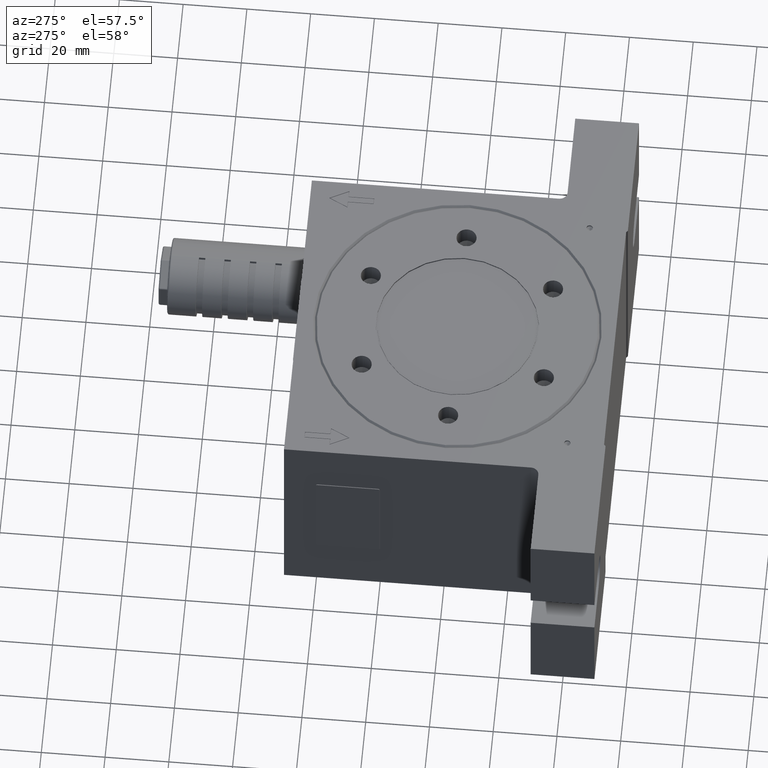
[diagram: clean part render]
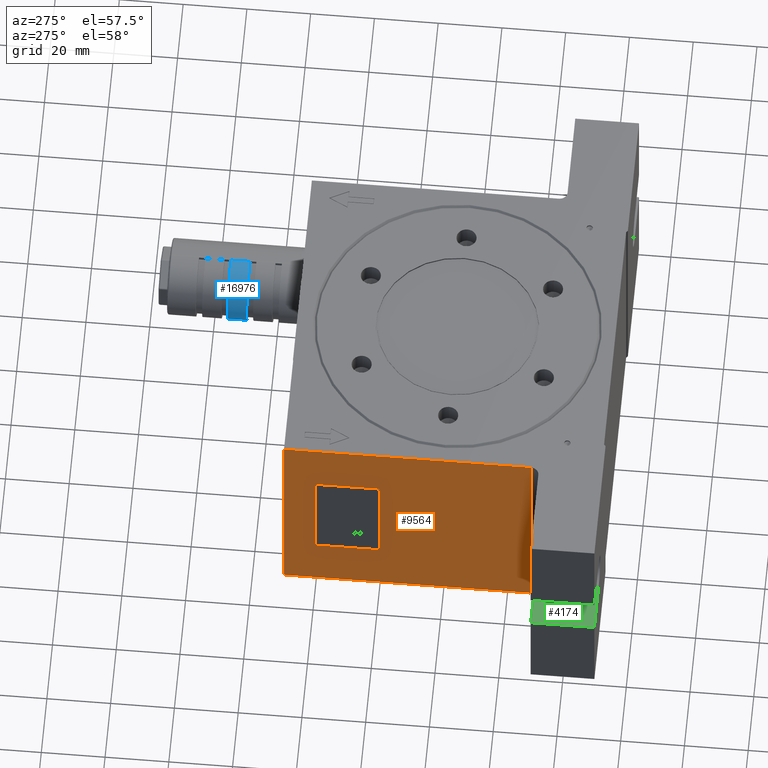
[diagram: same view with three faces highlighted in distinct colors, each labeled with its STEP entity id]
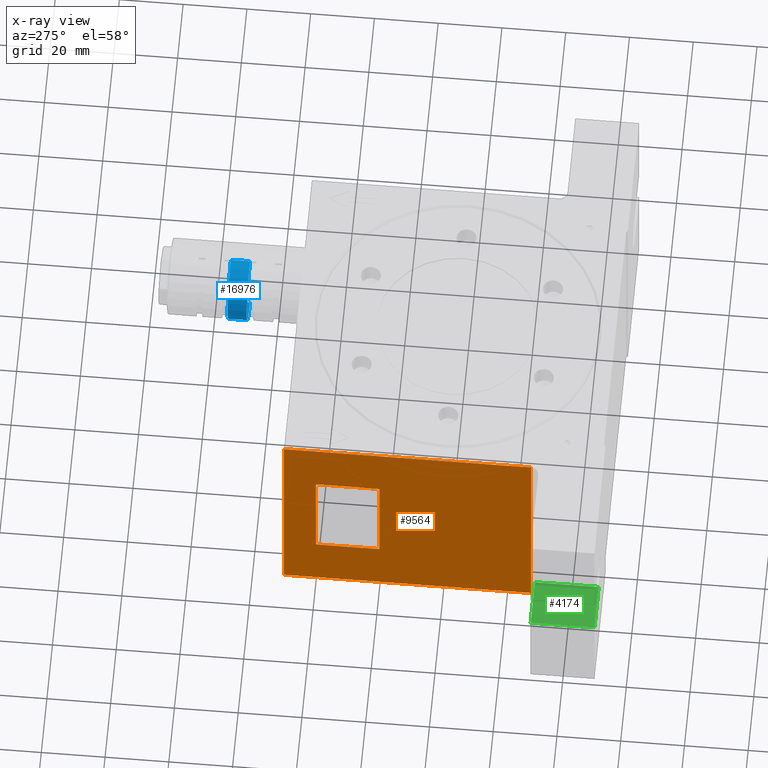
[diagram: x-ray of the same camera — body ghosted, the three highlighted faces saturated]
A machine part, auxiliary view with three faces highlighted in distinct colors.
The next image is the same camera in x-ray (body ghosted, the three faces saturated) — at least one of them is partly hidden behind the body in this view.
Their STEP definitions:

[orange] entity #9564 — the highlighted planar face has unit normal (1, 0, 0).
#187 = EDGE_CURVE ( 'NONE', #17499, #21171, #15452, .T. ) ;
#822 = ORIENTED_EDGE ( 'NONE', *, *, #22055, .T. ) ;
#852 = AXIS2_PLACEMENT_3D ( 'NONE', #12243, #8265, #15798 ) ;
#1632 = DIRECTION ( 'NONE',  ( 1.000000000000000000, 0.0000000000000000000, 0.0000000000000000000 ) ) ;
#1690 = EDGE_CURVE ( 'NONE', #20763, #24495, #15044, .T. ) ;
#2110 = CARTESIAN_POINT ( 'NONE',  ( -50.00000000000000000, 39.50000000000000000, 17.50000000000000000 ) ) ;
#2241 = VERTEX_POINT ( 'NONE', #14936 ) ;
#2710 = CARTESIAN_POINT ( 'NONE',  ( -50.00000000000000000, -27.50000000000000000, -36.50000000000000000 ) ) ;
#2783 = CIRCLE ( 'NONE', #7077, 0.5000000000000004400 ) ;
#2844 = CARTESIAN_POINT ( 'NONE',  ( -50.00000000000000000, 20.50000000000000000, 17.00000000000000000 ) ) ;
#3218 = AXIS2_PLACEMENT_3D ( 'NONE', #2844, #20069, #16385 ) ;
#3422 = LINE ( 'NONE', #13223, #17935 ) ;
#3959 = EDGE_CURVE ( 'NONE', #21384, #6188, #2783, .T. ) ;
#4138 = ORIENTED_EDGE ( 'NONE', *, *, #13981, .T. ) ;
#4201 = CIRCLE ( 'NONE', #20741, 0.5000000000000004400 ) ;
#4593 = VERTEX_POINT ( 'NONE', #11995 ) ;
#4663 = ORIENTED_EDGE ( 'NONE', *, *, #20098, .F. ) ;
#5164 = EDGE_CURVE ( 'NONE', #2241, #6188, #15127, .T. ) ;
#6021 = VERTEX_POINT ( 'NONE', #9073 ) ;
#6075 = VECTOR ( 'NONE', #17476, 1000.000000000000000 ) ;
#6151 = LINE ( 'NONE', #7075, #15287 ) ;
#6188 = VERTEX_POINT ( 'NONE', #18843 ) ;
#6537 = EDGE_CURVE ( 'NONE', #10835, #4593, #13467, .T. ) ;
#6594 = CARTESIAN_POINT ( 'NONE',  ( -50.00000000000000000, 39.50000000000000000, -17.00000000000000000 ) ) ;
#6926 = LINE ( 'NONE', #12762, #13266 ) ;
#7075 = CARTESIAN_POINT ( 'NONE',  ( -50.00000000000000000, 40.00000000000000000, 17.50000000000000000 ) ) ;
#7077 = AXIS2_PLACEMENT_3D ( 'NONE', #21386, #13665, #19367 ) ;
#7311 = LINE ( 'NONE', #19485, #6075 ) ;
#7895 = EDGE_LOOP ( 'NONE', ( #11871, #822, #12035, #4663 ) ) ;
#8265 = DIRECTION ( 'NONE',  ( 1.000000000000000000, 0.0000000000000000000, 0.0000000000000000000 ) ) ;
#8553 = DIRECTION ( 'NONE',  ( 0.0000000000000000000, 0.0000000000000000000, -1.000000000000000000 ) ) ;
#8641 = ORIENTED_EDGE ( 'NONE', *, *, #187, .T. ) ;
#9073 = CARTESIAN_POINT ( 'NONE',  ( -50.00000000000000000, 50.00000000000000000, 36.50000000000000000 ) ) ;
#9083 = EDGE_CURVE ( 'NONE', #2241, #17499, #4201, .T. ) ;
#9191 = DIRECTION ( 'NONE',  ( 0.0000000000000000000, -1.000000000000000000, 0.0000000000000000000 ) ) ;
#9356 = VECTOR ( 'NONE', #14165, 1000.000000000000000 ) ;
#9449 = DIRECTION ( 'NONE',  ( 0.0000000000000000000, 0.0000000000000000000, 1.000000000000000000 ) ) ;
#9564 = ADVANCED_FACE ( 'NONE', ( #22038, #10306 ), #14098, .F. ) ;
#9629 = CARTESIAN_POINT ( 'NONE',  ( -50.00000000000000000, 39.50000000000000000, 17.00000000000000000 ) ) ;
#9747 = CIRCLE ( 'NONE', #15082, 0.5000000000000004400 ) ;
#9993 = VECTOR ( 'NONE', #9449, 1000.000000000000000 ) ;
#10306 = FACE_OUTER_BOUND ( 'NONE', #7895, .T. ) ;
#10422 = VERTEX_POINT ( 'NONE', #2110 ) ;
#10835 = VERTEX_POINT ( 'NONE', #13452 ) ;
#11083 = DIRECTION ( 'NONE',  ( 0.0000000000000000000, 1.000000000000000000, 0.0000000000000000000 ) ) ;
#11364 = CARTESIAN_POINT ( 'NONE',  ( -50.00000000000000000, 40.00000000000000000, 17.00000000000000000 ) ) ;
#11751 = ORIENTED_EDGE ( 'NONE', *, *, #9083, .T. ) ;
#11871 = ORIENTED_EDGE ( 'NONE', *, *, #1690, .F. ) ;
#11995 = CARTESIAN_POINT ( 'NONE',  ( -50.00000000000000000, 20.00000000000000000, 17.00000000000000000 ) ) ;
#12035 = ORIENTED_EDGE ( 'NONE', *, *, #23351, .T. ) ;
#12243 = CARTESIAN_POINT ( 'NONE',  ( -50.00000000000000000, 50.00000000000000000, -36.50000000000000000 ) ) ;
#12762 = CARTESIAN_POINT ( 'NONE',  ( -50.00000000000000000, 50.00000000000000000, -36.50000000000000000 ) ) ;
#12884 = VECTOR ( 'NONE', #11083, 1000.000000000000000 ) ;
#13223 = CARTESIAN_POINT ( 'NONE',  ( -50.00000000000000000, 50.00000000000000000, 36.50000000000000000 ) ) ;
#13266 = VECTOR ( 'NONE', #18488, 1000.000000000000000 ) ;
#13452 = CARTESIAN_POINT ( 'NONE',  ( -50.00000000000000000, 20.50000000000000000, 17.50000000000000000 ) ) ;
#13467 = CIRCLE ( 'NONE', #3218, 0.5000000000000004400 ) ;
#13566 = CARTESIAN_POINT ( 'NONE',  ( -50.00000000000000000, -27.50000000000000000, 36.50000000000000000 ) ) ;
#13665 = DIRECTION ( 'NONE',  ( 1.000000000000000000, 0.0000000000000000000, 0.0000000000000000000 ) ) ;
#13981 = EDGE_CURVE ( 'NONE', #21171, #10422, #9747, .T. ) ;
#14098 = PLANE ( 'NONE',  #852 ) ;
#14165 = DIRECTION ( 'NONE',  ( 0.0000000000000000000, -1.000000000000000000, 0.0000000000000000000 ) ) ;
#14857 = EDGE_CURVE ( 'NONE', #21384, #4593, #22647, .T. ) ;
#14936 = CARTESIAN_POINT ( 'NONE',  ( -50.00000000000000000, 39.50000000000000000, -17.50000000000000000 ) ) ;
#15044 = LINE ( 'NONE', #22089, #12884 ) ;
#15082 = AXIS2_PLACEMENT_3D ( 'NONE', #9629, #1632, #19129 ) ;
#15127 = LINE ( 'NONE', #15455, #9356 ) ;
#15287 = VECTOR ( 'NONE', #9191, 1000.000000000000000 ) ;
#15295 = DIRECTION ( 'NONE',  ( 0.0000000000000000000, 1.000000000000000000, 0.0000000000000000000 ) ) ;
#15452 = LINE ( 'NONE', #24949, #9993 ) ;
#15455 = CARTESIAN_POINT ( 'NONE',  ( -50.00000000000000000, 40.00000000000000000, -17.50000000000000000 ) ) ;
#15598 = ORIENTED_EDGE ( 'NONE', *, *, #14857, .F. ) ;
#15798 = DIRECTION ( 'NONE',  ( 0.0000000000000000000, 0.0000000000000000000, -1.000000000000000000 ) ) ;
#16385 = DIRECTION ( 'NONE',  ( 0.0000000000000000000, 0.0000000000000000000, -1.000000000000000000 ) ) ;
#17476 = DIRECTION ( 'NONE',  ( 0.0000000000000000000, 0.0000000000000000000, 1.000000000000000000 ) ) ;
#17499 = VERTEX_POINT ( 'NONE', #18541 ) ;
#17935 = VECTOR ( 'NONE', #15295, 1000.000000000000000 ) ;
#18334 = DIRECTION ( 'NONE',  ( 1.000000000000000000, 0.0000000000000000000, 0.0000000000000000000 ) ) ;
#18488 = DIRECTION ( 'NONE',  ( 0.0000000000000000000, 0.0000000000000000000, 1.000000000000000000 ) ) ;
#18541 = CARTESIAN_POINT ( 'NONE',  ( -50.00000000000000000, 40.00000000000000000, -17.00000000000000000 ) ) ;
#18783 = CARTESIAN_POINT ( 'NONE',  ( -50.00000000000000000, 20.00000000000000000, -17.00000000000000000 ) ) ;
#18843 = CARTESIAN_POINT ( 'NONE',  ( -50.00000000000000000, 20.50000000000000000, -17.50000000000000000 ) ) ;
#19029 = VECTOR ( 'NONE', #22668, 1000.000000000000000 ) ;
#19066 = ORIENTED_EDGE ( 'NONE', *, *, #5164, .F. ) ;
#19101 = ORIENTED_EDGE ( 'NONE', *, *, #6537, .T. ) ;
#19129 = DIRECTION ( 'NONE',  ( 0.0000000000000000000, 0.0000000000000000000, -1.000000000000000000 ) ) ;
#19367 = DIRECTION ( 'NONE',  ( 0.0000000000000000000, 0.0000000000000000000, -1.000000000000000000 ) ) ;
#19485 = CARTESIAN_POINT ( 'NONE',  ( -50.00000000000000000, -27.50000000000000000, 36.50000000000000000 ) ) ;
#19529 = EDGE_LOOP ( 'NONE', ( #15598, #22674, #19066, #11751, #8641, #4138, #24040, #19101 ) ) ;
#20069 = DIRECTION ( 'NONE',  ( 1.000000000000000000, 0.0000000000000000000, 0.0000000000000000000 ) ) ;
#20098 = EDGE_CURVE ( 'NONE', #24495, #6021, #6926, .T. ) ;
#20468 = CARTESIAN_POINT ( 'NONE',  ( -50.00000000000000000, 20.00000000000000000, -17.50000000000000000 ) ) ;
#20741 = AXIS2_PLACEMENT_3D ( 'NONE', #6594, #18334, #8553 ) ;
#20763 = VERTEX_POINT ( 'NONE', #2710 ) ;
#21171 = VERTEX_POINT ( 'NONE', #11364 ) ;
#21285 = CARTESIAN_POINT ( 'NONE',  ( -50.00000000000000000, 50.00000000000000000, -36.50000000000000000 ) ) ;
#21384 = VERTEX_POINT ( 'NONE', #18783 ) ;
#21386 = CARTESIAN_POINT ( 'NONE',  ( -50.00000000000000000, 20.50000000000000000, -17.00000000000000000 ) ) ;
#22038 = FACE_BOUND ( 'NONE', #19529, .T. ) ;
#22055 = EDGE_CURVE ( 'NONE', #20763, #23329, #7311, .T. ) ;
#22089 = CARTESIAN_POINT ( 'NONE',  ( -50.00000000000000000, 50.00000000000000000, -36.50000000000000000 ) ) ;
#22647 = LINE ( 'NONE', #20468, #19029 ) ;
#22668 = DIRECTION ( 'NONE',  ( 0.0000000000000000000, 0.0000000000000000000, 1.000000000000000000 ) ) ;
#22674 = ORIENTED_EDGE ( 'NONE', *, *, #3959, .T. ) ;
#23208 = EDGE_CURVE ( 'NONE', #10422, #10835, #6151, .T. ) ;
#23329 = VERTEX_POINT ( 'NONE', #13566 ) ;
#23351 = EDGE_CURVE ( 'NONE', #23329, #6021, #3422, .T. ) ;
#24040 = ORIENTED_EDGE ( 'NONE', *, *, #23208, .T. ) ;
#24495 = VERTEX_POINT ( 'NONE', #21285 ) ;
#24949 = CARTESIAN_POINT ( 'NONE',  ( -50.00000000000000000, 40.00000000000000000, -17.50000000000000000 ) ) ;

[blue] entity #16976 — the highlighted cylindrical surface (partial cylindrical patch) has radius 12 mm, axis along (0, -1, 0).
#1021 = CYLINDRICAL_SURFACE ( 'NONE', #17493, 12.00000000000000000 ) ;
#1467 = DIRECTION ( 'NONE',  ( 0.0000000000000000000, 0.0000000000000000000, -1.000000000000000000 ) ) ;
#1532 = ORIENTED_EDGE ( 'NONE', *, *, #8338, .F. ) ;
#1974 = ORIENTED_EDGE ( 'NONE', *, *, #17089, .F. ) ;
#3421 = CARTESIAN_POINT ( 'NONE',  ( 34.00000000000000000, 93.00000000000000000, 12.00000000000000000 ) ) ;
#4490 = VECTOR ( 'NONE', #9706, 1000.000000000000000 ) ;
#4915 = CIRCLE ( 'NONE', #11398, 12.00000000000000000 ) ;
#5124 = EDGE_CURVE ( 'NONE', #24989, #6602, #22640, .T. ) ;
#5636 = CARTESIAN_POINT ( 'NONE',  ( 34.00000000000000000, 68.00000000000000000, 0.0000000000000000000 ) ) ;
#6344 = CARTESIAN_POINT ( 'NONE',  ( 34.00000000000000000, 74.00000000000000000, 12.00000000000000000 ) ) ;
#6602 = VERTEX_POINT ( 'NONE', #14809 ) ;
#7315 = CARTESIAN_POINT ( 'NONE',  ( 34.00000000000000000, 74.00000000000000000, 0.0000000000000000000 ) ) ;
#7406 = DIRECTION ( 'NONE',  ( 0.0000000000000000000, 1.000000000000000000, 0.0000000000000000000 ) ) ;
#8338 = EDGE_CURVE ( 'NONE', #24989, #21085, #15483, .T. ) ;
#9706 = DIRECTION ( 'NONE',  ( 0.0000000000000000000, -1.000000000000000000, 0.0000000000000000000 ) ) ;
#9919 = ORIENTED_EDGE ( 'NONE', *, *, #5124, .T. ) ;
#9946 = ORIENTED_EDGE ( 'NONE', *, *, #17213, .T. ) ;
#10335 = DIRECTION ( 'NONE',  ( 0.0000000000000000000, -1.000000000000000000, 0.0000000000000000000 ) ) ;
#11398 = AXIS2_PLACEMENT_3D ( 'NONE', #5636, #24969, #19140 ) ;
#13118 = LINE ( 'NONE', #3421, #22790 ) ;
#14040 = FACE_OUTER_BOUND ( 'NONE', #15056, .T. ) ;
#14105 = CARTESIAN_POINT ( 'NONE',  ( 34.00000000000000000, 74.00000000000000000, -12.00000000000000000 ) ) ;
#14171 = VERTEX_POINT ( 'NONE', #14349 ) ;
#14349 = CARTESIAN_POINT ( 'NONE',  ( 34.00000000000000000, 68.00000000000000000, 12.00000000000000000 ) ) ;
#14809 = CARTESIAN_POINT ( 'NONE',  ( 34.00000000000000000, 68.00000000000000000, -12.00000000000000000 ) ) ;
#15056 = EDGE_LOOP ( 'NONE', ( #1532, #9919, #9946, #1974 ) ) ;
#15079 = DIRECTION ( 'NONE',  ( 0.0000000000000000000, -1.000000000000000000, 0.0000000000000000000 ) ) ;
#15483 = CIRCLE ( 'NONE', #19418, 12.00000000000000000 ) ;
#16976 = ADVANCED_FACE ( 'NONE', ( #14040 ), #1021, .T. ) ;
#17089 = EDGE_CURVE ( 'NONE', #21085, #14171, #13118, .T. ) ;
#17213 = EDGE_CURVE ( 'NONE', #6602, #14171, #4915, .T. ) ;
#17493 = AXIS2_PLACEMENT_3D ( 'NONE', #21848, #10335, #22110 ) ;
#19140 = DIRECTION ( 'NONE',  ( 0.0000000000000000000, 0.0000000000000000000, -1.000000000000000000 ) ) ;
#19418 = AXIS2_PLACEMENT_3D ( 'NONE', #7315, #7406, #1467 ) ;
#21085 = VERTEX_POINT ( 'NONE', #6344 ) ;
#21237 = CARTESIAN_POINT ( 'NONE',  ( 34.00000000000000000, 93.00000000000000000, -12.00000000000000000 ) ) ;
#21848 = CARTESIAN_POINT ( 'NONE',  ( 34.00000000000000000, 93.00000000000000000, 0.0000000000000000000 ) ) ;
#22110 = DIRECTION ( 'NONE',  ( 0.0000000000000000000, 0.0000000000000000000, 1.000000000000000000 ) ) ;
#22640 = LINE ( 'NONE', #21237, #4490 ) ;
#22790 = VECTOR ( 'NONE', #15079, 1000.000000000000000 ) ;
#24969 = DIRECTION ( 'NONE',  ( 0.0000000000000000000, 1.000000000000000000, 0.0000000000000000000 ) ) ;
#24989 = VERTEX_POINT ( 'NONE', #14105 ) ;

[green] entity #4174 — the highlighted planar face has unit normal (-0, 0, -1).
#580 = CARTESIAN_POINT ( 'NONE',  ( -80.00000000000000000, -30.00000000000000000, -6.500000000000000000 ) ) ;
#733 = LINE ( 'NONE', #17090, #20665 ) ;
#1317 = VECTOR ( 'NONE', #16095, 1000.000000000000000 ) ;
#1667 = CARTESIAN_POINT ( 'NONE',  ( -65.00000000000000000, -50.00000000000000000, -6.500000000000000000 ) ) ;
#2184 = LINE ( 'NONE', #3010, #20335 ) ;
#2206 = DIRECTION ( 'NONE',  ( -1.000000000000000000, 0.0000000000000000000, 6.938893903907230300E-016 ) ) ;
#2548 = PLANE ( 'NONE',  #18226 ) ;
#2822 = LINE ( 'NONE', #20018, #1317 ) ;
#3010 = CARTESIAN_POINT ( 'NONE',  ( -80.00000000000000000, -30.00000000000000000, -6.500000000000000000 ) ) ;
#3125 = LINE ( 'NONE', #1667, #17335 ) ;
#4174 = ADVANCED_FACE ( 'NONE', ( #19061 ), #2548, .F. ) ;
#4286 = ORIENTED_EDGE ( 'NONE', *, *, #21646, .F. ) ;
#4887 = DIRECTION ( 'NONE',  ( -1.000000000000000000, 0.0000000000000000000, 6.938893903907230300E-016 ) ) ;
#6404 = CARTESIAN_POINT ( 'NONE',  ( -80.00000000000000000, -50.00000000000000000, -6.500000000000000000 ) ) ;
#6406 = VERTEX_POINT ( 'NONE', #6404 ) ;
#7106 = EDGE_CURVE ( 'NONE', #21970, #6406, #733, .T. ) ;
#9346 = DIRECTION ( 'NONE',  ( -1.000000000000000000, 0.0000000000000000000, 6.938893903907230300E-016 ) ) ;
#10041 = DIRECTION ( 'NONE',  ( -6.938893903907230300E-016, 0.0000000000000000000, -1.000000000000000000 ) ) ;
#11101 = VERTEX_POINT ( 'NONE', #19996 ) ;
#11930 = VERTEX_POINT ( 'NONE', #580 ) ;
#12023 = EDGE_CURVE ( 'NONE', #11101, #11930, #2184, .T. ) ;
#15342 = CARTESIAN_POINT ( 'NONE',  ( -65.00000000000000000, -50.00000000000000000, -6.500000000000000000 ) ) ;
#15416 = DIRECTION ( 'NONE',  ( 0.0000000000000000000, 1.000000000000000000, 0.0000000000000000000 ) ) ;
#16095 = DIRECTION ( 'NONE',  ( 0.0000000000000000000, 1.000000000000000000, 0.0000000000000000000 ) ) ;
#16117 = CARTESIAN_POINT ( 'NONE',  ( -80.00000000000000000, -50.00000000000000000, -6.500000000000000000 ) ) ;
#16714 = EDGE_CURVE ( 'NONE', #21970, #11101, #3125, .T. ) ;
#16985 = ORIENTED_EDGE ( 'NONE', *, *, #12023, .T. ) ;
#17090 = CARTESIAN_POINT ( 'NONE',  ( -80.00000000000000000, -50.00000000000000000, -6.500000000000000000 ) ) ;
#17335 = VECTOR ( 'NONE', #15416, 1000.000000000000000 ) ;
#18226 = AXIS2_PLACEMENT_3D ( 'NONE', #16117, #10041, #2206 ) ;
#18577 = ORIENTED_EDGE ( 'NONE', *, *, #16714, .T. ) ;
#19061 = FACE_OUTER_BOUND ( 'NONE', #23627, .T. ) ;
#19263 = ORIENTED_EDGE ( 'NONE', *, *, #7106, .F. ) ;
#19996 = CARTESIAN_POINT ( 'NONE',  ( -65.00000000000000000, -30.00000000000000000, -6.500000000000000000 ) ) ;
#20018 = CARTESIAN_POINT ( 'NONE',  ( -80.00000000000000000, -50.00000000000000000, -6.500000000000000000 ) ) ;
#20335 = VECTOR ( 'NONE', #4887, 1000.000000000000000 ) ;
#20665 = VECTOR ( 'NONE', #9346, 1000.000000000000000 ) ;
#21646 = EDGE_CURVE ( 'NONE', #6406, #11930, #2822, .T. ) ;
#21970 = VERTEX_POINT ( 'NONE', #15342 ) ;
#23627 = EDGE_LOOP ( 'NONE', ( #16985, #4286, #19263, #18577 ) ) ;